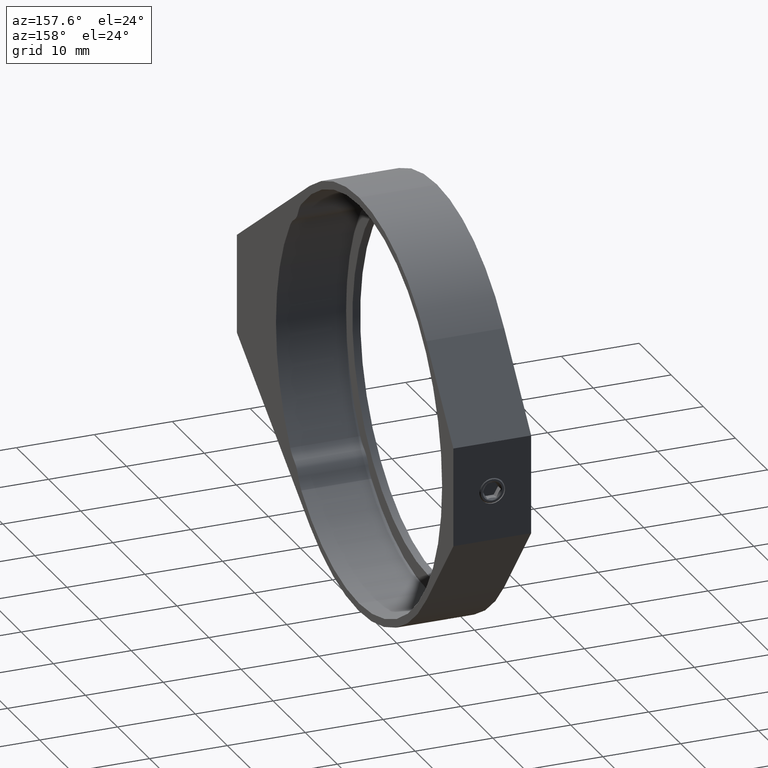
[diagram: clean part render]
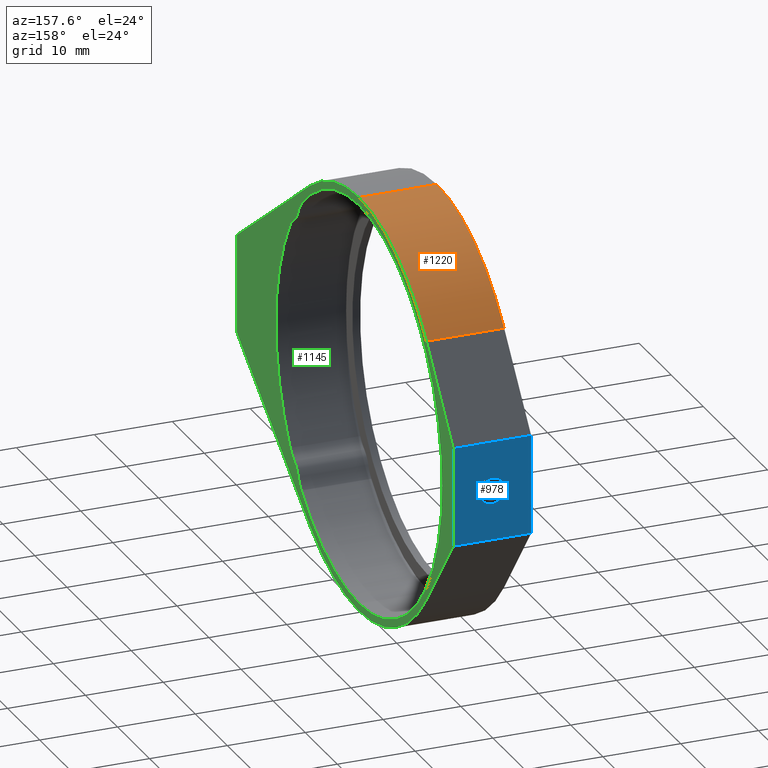
[diagram: same view with three faces highlighted in distinct colors, each labeled with its STEP entity id]
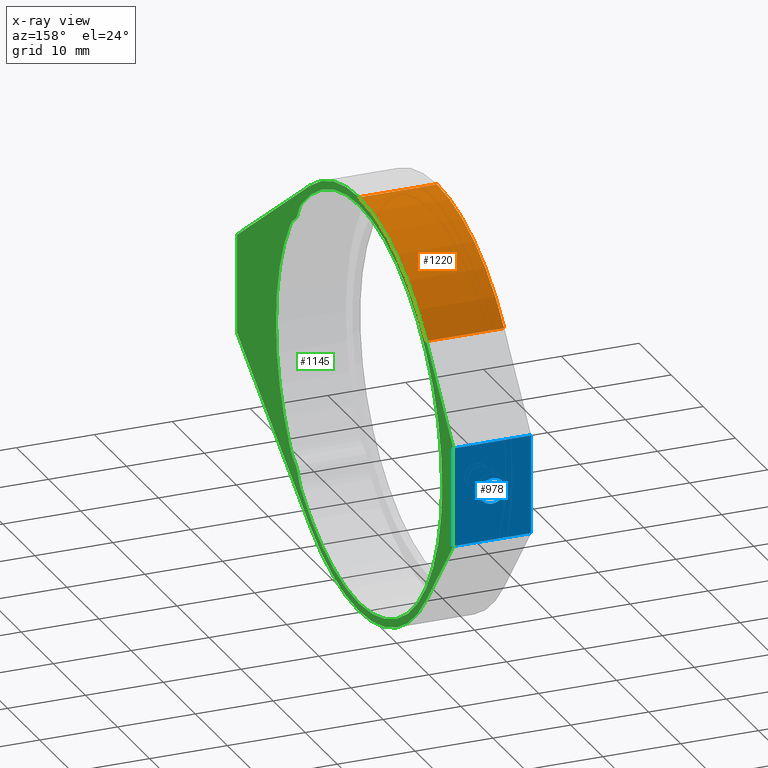
[diagram: x-ray of the same camera — body ghosted, the three highlighted faces saturated]
A machine part, auxiliary view with three faces highlighted in distinct colors.
The next image is the same camera in x-ray (body ghosted, the three faces saturated) — at least one of them is partly hidden behind the body in this view.
Their STEP definitions:

[orange] entity #1220 — the highlighted cylindrical surface (partial cylindrical patch) has radius 26.9 mm, axis along (-1, -0, -0).
#43 = ORIENTED_EDGE ( 'NONE', *, *, #402, .F. ) ;
#48 = VECTOR ( 'NONE', #354, 1000.000000000000000 ) ;
#124 = CARTESIAN_POINT ( 'NONE',  ( -18.30337078651686156, 2.372471910112824212, 67.49999999999998579 ) ) ;
#204 = DIRECTION ( 'NONE',  ( 1.000000000000000000, 0.0000000000000000000, 0.0000000000000000000 ) ) ;
#285 = DIRECTION ( 'NONE',  ( 0.0000000000000000000, 0.0000000000000000000, -1.000000000000000000 ) ) ;
#294 = VERTEX_POINT ( 'NONE', #610 ) ;
#305 = CARTESIAN_POINT ( 'NONE',  ( -8.303370786516859781, 2.372471910112824212, 67.49999999999998579 ) ) ;
#354 = DIRECTION ( 'NONE',  ( -1.000000000000000000, -0.0000000000000000000, -0.0000000000000000000 ) ) ;
#386 = DIRECTION ( 'NONE',  ( -1.000000000000000000, -0.0000000000000000000, -0.0000000000000000000 ) ) ;
#402 = EDGE_CURVE ( 'NONE', #1289, #469, #1460, .T. ) ;
#469 = VERTEX_POINT ( 'NONE', #553 ) ;
#518 = CARTESIAN_POINT ( 'NONE',  ( -8.303370786516859781, 23.34733657643639404, 84.34235886773022628 ) ) ;
#552 = EDGE_CURVE ( 'NONE', #294, #708, #1318, .T. ) ;
#553 = CARTESIAN_POINT ( 'NONE',  ( -8.303370786516859781, 2.372471910112824212, 94.39999999999997726 ) ) ;
#610 = CARTESIAN_POINT ( 'NONE',  ( -18.30337078651686156, 23.34733657643639404, 84.34235886773022628 ) ) ;
#632 = LINE ( 'NONE', #518, #889 ) ;
#648 = EDGE_LOOP ( 'NONE', ( #1506, #43, #1491, #1308 ) ) ;
#661 = DIRECTION ( 'NONE',  ( 0.0000000000000000000, 0.0000000000000000000, 1.000000000000000000 ) ) ;
#667 = AXIS2_PLACEMENT_3D ( 'NONE', #305, #1236, #661 ) ;
#694 = CARTESIAN_POINT ( 'NONE',  ( -8.303370786516859781, 2.372471910112824212, 94.39999999999997726 ) ) ;
#703 = LINE ( 'NONE', #694, #48 ) ;
#708 = VERTEX_POINT ( 'NONE', #1338 ) ;
#766 = CARTESIAN_POINT ( 'NONE',  ( -8.303370786516859781, 2.372471910112824212, 67.49999999999998579 ) ) ;
#806 = DIRECTION ( 'NONE',  ( 0.0000000000000000000, 0.0000000000000000000, -1.000000000000000000 ) ) ;
#889 = VECTOR ( 'NONE', #386, 1000.000000000000000 ) ;
#892 = FACE_OUTER_BOUND ( 'NONE', #648, .T. ) ;
#909 = AXIS2_PLACEMENT_3D ( 'NONE', #766, #1239, #285 ) ;
#999 = CYLINDRICAL_SURFACE ( 'NONE', #667, 26.89999999999999503 ) ;
#1038 = EDGE_CURVE ( 'NONE', #1289, #294, #632, .T. ) ;
#1180 = CARTESIAN_POINT ( 'NONE',  ( -8.303370786516859781, 23.34733657643639404, 84.34235886773022628 ) ) ;
#1220 = ADVANCED_FACE ( 'NONE', ( #892 ), #999, .T. ) ;
#1236 = DIRECTION ( 'NONE',  ( -1.000000000000000000, -0.0000000000000000000, -0.0000000000000000000 ) ) ;
#1239 = DIRECTION ( 'NONE',  ( 1.000000000000000000, 0.0000000000000000000, 0.0000000000000000000 ) ) ;
#1272 = EDGE_CURVE ( 'NONE', #469, #708, #703, .T. ) ;
#1289 = VERTEX_POINT ( 'NONE', #1180 ) ;
#1308 = ORIENTED_EDGE ( 'NONE', *, *, #552, .T. ) ;
#1318 = CIRCLE ( 'NONE', #1362, 26.89999999999999503 ) ;
#1338 = CARTESIAN_POINT ( 'NONE',  ( -18.30337078651686156, 2.372471910112824212, 94.39999999999997726 ) ) ;
#1362 = AXIS2_PLACEMENT_3D ( 'NONE', #124, #204, #806 ) ;
#1460 = CIRCLE ( 'NONE', #909, 26.89999999999999503 ) ;
#1491 = ORIENTED_EDGE ( 'NONE', *, *, #1038, .T. ) ;
#1506 = ORIENTED_EDGE ( 'NONE', *, *, #1272, .F. ) ;

[blue] entity #978 — the highlighted planar face has unit normal (0, -1, 0).
#12 = CARTESIAN_POINT ( 'NONE',  ( -8.303370786516859781, 31.77247191011282368, 73.84999999999999432 ) ) ;
#20 = ORIENTED_EDGE ( 'NONE', *, *, #149, .F. ) ;
#30 = CARTESIAN_POINT ( 'NONE',  ( -18.30337078651686156, 31.77247191011282368, 73.84999999999999432 ) ) ;
#81 = CARTESIAN_POINT ( 'NONE',  ( -13.30337078651685978, 31.77247191011282368, 67.49999999999998579 ) ) ;
#149 = EDGE_CURVE ( 'NONE', #208, #229, #800, .T. ) ;
#157 = DIRECTION ( 'NONE',  ( -1.000000000000000000, -0.0000000000000000000, -0.0000000000000000000 ) ) ;
#160 = CARTESIAN_POINT ( 'NONE',  ( -18.30337078651686156, 31.77247191011282368, 61.14999999999999147 ) ) ;
#208 = VERTEX_POINT ( 'NONE', #12 ) ;
#229 = VERTEX_POINT ( 'NONE', #30 ) ;
#236 = CARTESIAN_POINT ( 'NONE',  ( -8.303370786516859781, 31.77247191011282368, 73.84999999999999432 ) ) ;
#281 = CARTESIAN_POINT ( 'NONE',  ( -8.303370786516859781, 31.77247191011282368, 73.84999999999999432 ) ) ;
#312 = ORIENTED_EDGE ( 'NONE', *, *, #925, .F. ) ;
#320 = VECTOR ( 'NONE', #362, 1000.000000000000000 ) ;
#362 = DIRECTION ( 'NONE',  ( -1.000000000000000000, -0.0000000000000000000, -0.0000000000000000000 ) ) ;
#403 = DIRECTION ( 'NONE',  ( 0.0000000000000000000, -0.0000000000000000000, -1.000000000000000000 ) ) ;
#408 = EDGE_LOOP ( 'NONE', ( #1184, #20, #312, #1493 ) ) ;
#440 = EDGE_CURVE ( 'NONE', #1142, #1441, #786, .T. ) ;
#451 = ORIENTED_EDGE ( 'NONE', *, *, #440, .F. ) ;
#464 = CARTESIAN_POINT ( 'NONE',  ( -8.303370786516859781, 31.77247191011282368, 73.84999999999999432 ) ) ;
#501 = EDGE_LOOP ( 'NONE', ( #451, #1251 ) ) ;
#506 = DIRECTION ( 'NONE',  ( -0.0000000000000000000, 1.000000000000000000, -0.0000000000000000000 ) ) ;
#570 = AXIS2_PLACEMENT_3D ( 'NONE', #281, #735, #403 ) ;
#696 = VERTEX_POINT ( 'NONE', #160 ) ;
#735 = DIRECTION ( 'NONE',  ( 0.0000000000000000000, -1.000000000000000000, 0.0000000000000000000 ) ) ;
#745 = CARTESIAN_POINT ( 'NONE',  ( -13.30337078651685978, 31.77247191011282368, 65.85000000000000853 ) ) ;
#746 = DIRECTION ( 'NONE',  ( 0.0000000000000000000, 0.0000000000000000000, 1.000000000000000000 ) ) ;
#761 = AXIS2_PLACEMENT_3D ( 'NONE', #81, #772, #1252 ) ;
#772 = DIRECTION ( 'NONE',  ( -0.0000000000000000000, 1.000000000000000000, -0.0000000000000000000 ) ) ;
#786 = CIRCLE ( 'NONE', #761, 1.649999999999984812 ) ;
#791 = VERTEX_POINT ( 'NONE', #1244 ) ;
#800 = LINE ( 'NONE', #464, #320 ) ;
#830 = LINE ( 'NONE', #236, #1341 ) ;
#855 = LINE ( 'NONE', #858, #1513 ) ;
#858 = CARTESIAN_POINT ( 'NONE',  ( -8.303370786516859781, 31.77247191011282368, 61.14999999999999147 ) ) ;
#864 = CARTESIAN_POINT ( 'NONE',  ( -13.30337078651685978, 31.77247191011282368, 67.49999999999998579 ) ) ;
#865 = CIRCLE ( 'NONE', #1107, 1.649999999999984812 ) ;
#877 = DIRECTION ( 'NONE',  ( -0.0000000000000000000, -0.0000000000000000000, 1.000000000000000000 ) ) ;
#925 = EDGE_CURVE ( 'NONE', #791, #208, #830, .T. ) ;
#978 = ADVANCED_FACE ( 'NONE', ( #1047, #1099 ), #1212, .F. ) ;
#1008 = EDGE_CURVE ( 'NONE', #1441, #1142, #865, .T. ) ;
#1028 = EDGE_CURVE ( 'NONE', #791, #696, #855, .T. ) ;
#1047 = FACE_BOUND ( 'NONE', #501, .T. ) ;
#1099 = FACE_OUTER_BOUND ( 'NONE', #408, .T. ) ;
#1107 = AXIS2_PLACEMENT_3D ( 'NONE', #864, #506, #746 ) ;
#1142 = VERTEX_POINT ( 'NONE', #1376 ) ;
#1184 = ORIENTED_EDGE ( 'NONE', *, *, #1503, .T. ) ;
#1212 = PLANE ( 'NONE',  #570 ) ;
#1244 = CARTESIAN_POINT ( 'NONE',  ( -8.303370786516859781, 31.77247191011282368, 61.14999999999999147 ) ) ;
#1251 = ORIENTED_EDGE ( 'NONE', *, *, #1008, .F. ) ;
#1252 = DIRECTION ( 'NONE',  ( 0.0000000000000000000, 0.0000000000000000000, 1.000000000000000000 ) ) ;
#1263 = VECTOR ( 'NONE', #877, 1000.000000000000000 ) ;
#1306 = DIRECTION ( 'NONE',  ( -0.0000000000000000000, -0.0000000000000000000, 1.000000000000000000 ) ) ;
#1341 = VECTOR ( 'NONE', #1306, 1000.000000000000000 ) ;
#1374 = LINE ( 'NONE', #1471, #1263 ) ;
#1376 = CARTESIAN_POINT ( 'NONE',  ( -13.30337078651685978, 31.77247191011282368, 69.14999999999997726 ) ) ;
#1441 = VERTEX_POINT ( 'NONE', #745 ) ;
#1471 = CARTESIAN_POINT ( 'NONE',  ( -18.30337078651686156, 31.77247191011282368, 73.84999999999999432 ) ) ;
#1493 = ORIENTED_EDGE ( 'NONE', *, *, #1028, .T. ) ;
#1503 = EDGE_CURVE ( 'NONE', #696, #229, #1374, .T. ) ;
#1513 = VECTOR ( 'NONE', #157, 1000.000000000000000 ) ;

[green] entity #1145 — the highlighted planar face has unit normal (1, 0, 0).
#12 = CARTESIAN_POINT ( 'NONE',  ( -8.303370786516859781, 31.77247191011282368, 73.84999999999999432 ) ) ;
#15 = ORIENTED_EDGE ( 'NONE', *, *, #1522, .F. ) ;
#24 = EDGE_CURVE ( 'NONE', #753, #140, #415, .T. ) ;
#55 = DIRECTION ( 'NONE',  ( -1.000000000000000000, -0.0000000000000000000, -0.0000000000000000000 ) ) ;
#62 = CARTESIAN_POINT ( 'NONE',  ( -8.303370786516856228, -15.77737606549634997, 55.24467387368756732 ) ) ;
#63 = DIRECTION ( 'NONE',  ( 1.000000000000000000, -0.0000000000000000000, 0.0000000000000000000 ) ) ;
#68 = ORIENTED_EDGE ( 'NONE', *, *, #925, .T. ) ;
#85 = VERTEX_POINT ( 'NONE', #998 ) ;
#91 = PLANE ( 'NONE',  #421 ) ;
#104 = CARTESIAN_POINT ( 'NONE',  ( -8.303370786516859781, -15.62841624784376471, 48.87802305004274217 ) ) ;
#106 = ORIENTED_EDGE ( 'NONE', *, *, #1060, .T. ) ;
#110 = EDGE_CURVE ( 'NONE', #841, #1317, #1314, .T. ) ;
#125 = CIRCLE ( 'NONE', #717, 4.000000000000003553 ) ;
#140 = VERTEX_POINT ( 'NONE', #948 ) ;
#159 = ORIENTED_EDGE ( 'NONE', *, *, #24, .T. ) ;
#168 = CARTESIAN_POINT ( 'NONE',  ( -8.303370786516859781, -12.93303491385150572, 45.37871023512459345 ) ) ;
#179 = FACE_BOUND ( 'NONE', #1149, .T. ) ;
#183 = DIRECTION ( 'NONE',  ( 0.0000000000000000000, 0.0000000000000000000, -1.000000000000000000 ) ) ;
#189 = DIRECTION ( 'NONE',  ( 0.0000000000000000000, 0.0000000000000000000, -1.000000000000000000 ) ) ;
#194 = ORIENTED_EDGE ( 'NONE', *, *, #666, .T. ) ;
#207 = CARTESIAN_POINT ( 'NONE',  ( -8.303370786516859781, -19.09241679163501360, 53.00625814285425008 ) ) ;
#208 = VERTEX_POINT ( 'NONE', #12 ) ;
#236 = CARTESIAN_POINT ( 'NONE',  ( -8.303370786516859781, 31.77247191011282368, 73.84999999999999432 ) ) ;
#250 = CIRCLE ( 'NONE', #566, 25.90000000000000568 ) ;
#253 = CARTESIAN_POINT ( 'NONE',  ( -8.303370786516856228, -12.84835630066901579, 83.24599595382483130 ) ) ;
#254 = AXIS2_PLACEMENT_3D ( 'NONE', #929, #336, #1072 ) ;
#269 = EDGE_CURVE ( 'NONE', #208, #1289, #1434, .T. ) ;
#285 = DIRECTION ( 'NONE',  ( 0.0000000000000000000, 0.0000000000000000000, -1.000000000000000000 ) ) ;
#286 = ORIENTED_EDGE ( 'NONE', *, *, #110, .F. ) ;
#290 = LINE ( 'NONE', #1433, #1288 ) ;
#307 = DIRECTION ( 'NONE',  ( 0.0000000000000000000, -1.734723475976808672E-15, -1.000000000000000000 ) ) ;
#311 = DIRECTION ( 'NONE',  ( 1.000000000000000000, 0.0000000000000000000, 0.0000000000000000000 ) ) ;
#328 = CARTESIAN_POINT ( 'NONE',  ( -8.303370786516859781, 2.372471910112824212, 67.49999999999998579 ) ) ;
#329 = CIRCLE ( 'NONE', #1192, 25.90000000000000568 ) ;
#336 = DIRECTION ( 'NONE',  ( -1.000000000000000000, 0.0000000000000000000, -0.0000000000000000000 ) ) ;
#348 = EDGE_CURVE ( 'NONE', #918, #712, #125, .T. ) ;
#366 = ORIENTED_EDGE ( 'NONE', *, *, #939, .T. ) ;
#378 = CARTESIAN_POINT ( 'NONE',  ( -8.303370786516859781, 31.77247191011282368, 73.84999999999999432 ) ) ;
#380 = DIRECTION ( 'NONE',  ( 0.0000000000000000000, 8.673617379884027583E-16, -1.000000000000000000 ) ) ;
#402 = EDGE_CURVE ( 'NONE', #1289, #469, #1460, .T. ) ;
#410 = CARTESIAN_POINT ( 'NONE',  ( -8.303370786516859781, 31.77247191011282368, 61.14999999999999147 ) ) ;
#411 = DIRECTION ( 'NONE',  ( -1.000000000000000000, -0.0000000000000000000, -0.0000000000000000000 ) ) ;
#415 = CIRCLE ( 'NONE', #472, 3.000000000000002665 ) ;
#421 = AXIS2_PLACEMENT_3D ( 'NONE', #1027, #1256, #1268 ) ;
#425 = LINE ( 'NONE', #1511, #741 ) ;
#428 = VERTEX_POINT ( 'NONE', #545 ) ;
#446 = AXIS2_PLACEMENT_3D ( 'NONE', #621, #55, #527 ) ;
#450 = EDGE_CURVE ( 'NONE', #918, #85, #250, .T. ) ;
#452 = ORIENTED_EDGE ( 'NONE', *, *, #805, .T. ) ;
#455 = DIRECTION ( 'NONE',  ( 1.000000000000000000, -0.0000000000000000000, 0.0000000000000000000 ) ) ;
#457 = DIRECTION ( 'NONE',  ( 1.000000000000000000, -0.0000000000000000000, 0.0000000000000000000 ) ) ;
#469 = VERTEX_POINT ( 'NONE', #553 ) ;
#472 = AXIS2_PLACEMENT_3D ( 'NONE', #1520, #457, #922 ) ;
#497 = CIRCLE ( 'NONE', #519, 3.999999999999996447 ) ;
#507 = VERTEX_POINT ( 'NONE', #709 ) ;
#519 = AXIS2_PLACEMENT_3D ( 'NONE', #62, #536, #307 ) ;
#527 = DIRECTION ( 'NONE',  ( 0.0000000000000000000, -3.469446951953611033E-15, -1.000000000000000000 ) ) ;
#536 = DIRECTION ( 'NONE',  ( -1.000000000000000000, -0.0000000000000000000, -0.0000000000000000000 ) ) ;
#538 = DIRECTION ( 'NONE',  ( 0.0000000000000000000, 0.0000000000000000000, -1.000000000000000000 ) ) ;
#539 = DIRECTION ( 'NONE',  ( 1.000000000000000000, 0.0000000000000000000, 0.0000000000000000000 ) ) ;
#545 = CARTESIAN_POINT ( 'NONE',  ( -8.303370786516859781, 23.34733657643639049, 50.65764113226976662 ) ) ;
#546 = DIRECTION ( 'NONE',  ( 1.000000000000000000, -0.0000000000000000000, 0.0000000000000000000 ) ) ;
#553 = CARTESIAN_POINT ( 'NONE',  ( -8.303370786516859781, 2.372471910112824212, 94.39999999999997726 ) ) ;
#554 = DIRECTION ( 'NONE',  ( 0.0000000000000000000, -0.8223527793633977900, -0.5689779488462577417 ) ) ;
#561 = DIRECTION ( 'NONE',  ( 0.0000000000000000000, 0.0000000000000000000, -1.000000000000000000 ) ) ;
#566 = AXIS2_PLACEMENT_3D ( 'NONE', #1136, #63, #538 ) ;
#577 = EDGE_LOOP ( 'NONE', ( #1428, #1226, #874, #1000, #1269, #678, #194, #68, #1281 ) ) ;
#618 = CARTESIAN_POINT ( 'NONE',  ( -8.303370786516859781, -35.72752808988716566, 61.14999999999999147 ) ) ;
#621 = CARTESIAN_POINT ( 'NONE',  ( -8.303370786516856228, -15.77737606549636418, 79.75532612631239715 ) ) ;
#622 = CIRCLE ( 'NONE', #1209, 26.89999999999999503 ) ;
#647 = EDGE_CURVE ( 'NONE', #1367, #1472, #290, .T. ) ;
#654 = CARTESIAN_POINT ( 'NONE',  ( -8.303370786516859781, 2.372471910112824212, 67.49999999999998579 ) ) ;
#666 = EDGE_CURVE ( 'NONE', #428, #791, #1459, .T. ) ;
#678 = ORIENTED_EDGE ( 'NONE', *, *, #1121, .T. ) ;
#684 = LINE ( 'NONE', #1157, #1444 ) ;
#691 = CIRCLE ( 'NONE', #1413, 26.89999999999999503 ) ;
#706 = DIRECTION ( 'NONE',  ( -1.000000000000000000, -0.0000000000000000000, -0.0000000000000000000 ) ) ;
#709 = CARTESIAN_POINT ( 'NONE',  ( -8.303370786516859781, -12.93303491385151105, 89.62128976487537102 ) ) ;
#712 = VERTEX_POINT ( 'NONE', #754 ) ;
#717 = AXIS2_PLACEMENT_3D ( 'NONE', #1111, #411, #869 ) ;
#723 = CIRCLE ( 'NONE', #254, 3.000000000000002665 ) ;
#741 = VECTOR ( 'NONE', #554, 1000.000000000000114 ) ;
#753 = VERTEX_POINT ( 'NONE', #1061 ) ;
#754 = CARTESIAN_POINT ( 'NONE',  ( -8.303370786516859781, -16.58254714283878428, 50.32019138259061464 ) ) ;
#762 = ORIENTED_EDGE ( 'NONE', *, *, #450, .F. ) ;
#764 = AXIS2_PLACEMENT_3D ( 'NONE', #253, #706, #380 ) ;
#766 = CARTESIAN_POINT ( 'NONE',  ( -8.303370786516859781, 2.372471910112824212, 67.49999999999998579 ) ) ;
#776 = CARTESIAN_POINT ( 'NONE',  ( -8.303370786516859781, 2.372471910112824212, 67.49999999999998579 ) ) ;
#791 = VERTEX_POINT ( 'NONE', #1244 ) ;
#805 = EDGE_CURVE ( 'NONE', #1223, #1150, #497, .T. ) ;
#808 = CARTESIAN_POINT ( 'NONE',  ( -8.303370786516859781, 2.372471910112824212, 67.49999999999998579 ) ) ;
#830 = LINE ( 'NONE', #236, #1341 ) ;
#839 = VERTEX_POINT ( 'NONE', #1430 ) ;
#841 = VERTEX_POINT ( 'NONE', #931 ) ;
#854 = CARTESIAN_POINT ( 'NONE',  ( -8.303370786516859781, -19.09241679163502781, 81.99374185714570729 ) ) ;
#868 = AXIS2_PLACEMENT_3D ( 'NONE', #654, #883, #189 ) ;
#869 = DIRECTION ( 'NONE',  ( 0.0000000000000000000, 1.734723475976805517E-15, -1.000000000000000000 ) ) ;
#874 = ORIENTED_EDGE ( 'NONE', *, *, #1213, .T. ) ;
#883 = DIRECTION ( 'NONE',  ( 1.000000000000000000, -0.0000000000000000000, 0.0000000000000000000 ) ) ;
#884 = AXIS2_PLACEMENT_3D ( 'NONE', #808, #455, #1518 ) ;
#895 = ORIENTED_EDGE ( 'NONE', *, *, #1531, .F. ) ;
#907 = CARTESIAN_POINT ( 'NONE',  ( -8.303370786516859781, -17.83784132776479225, 51.81619273723879360 ) ) ;
#909 = AXIS2_PLACEMENT_3D ( 'NONE', #766, #1239, #285 ) ;
#918 = VERTEX_POINT ( 'NONE', #104 ) ;
#921 = CARTESIAN_POINT ( 'NONE',  ( -8.303370786516859781, -15.62841624784377892, 86.12197694995721520 ) ) ;
#922 = DIRECTION ( 'NONE',  ( 0.0000000000000000000, 0.0000000000000000000, -1.000000000000000000 ) ) ;
#925 = EDGE_CURVE ( 'NONE', #791, #208, #830, .T. ) ;
#929 = CARTESIAN_POINT ( 'NONE',  ( -8.303370786516859781, -19.38319027446611997, 49.24483188490222574 ) ) ;
#931 = CARTESIAN_POINT ( 'NONE',  ( -8.303370786516859781, 2.372471910112827320, 93.40000000000000568 ) ) ;
#939 = EDGE_CURVE ( 'NONE', #140, #1317, #1463, .T. ) ;
#947 = DIRECTION ( 'NONE',  ( -0.0000000000000000000, 0.6261099950829078775, 0.7797347459599842656 ) ) ;
#948 = CARTESIAN_POINT ( 'NONE',  ( -8.303370786516859781, -16.58254714283879139, 84.67980861740934984 ) ) ;
#968 = EDGE_CURVE ( 'NONE', #839, #1367, #684, .T. ) ;
#998 = CARTESIAN_POINT ( 'NONE',  ( -8.303370786516859781, 2.372471910112824212, 41.59999999999998010 ) ) ;
#1000 = ORIENTED_EDGE ( 'NONE', *, *, #968, .T. ) ;
#1002 = DIRECTION ( 'NONE',  ( 0.0000000000000000000, 0.0000000000000000000, -1.000000000000000000 ) ) ;
#1027 = CARTESIAN_POINT ( 'NONE',  ( -8.303370786516859781, 2.372471910112824212, 67.49999999999998579 ) ) ;
#1031 = CIRCLE ( 'NONE', #446, 4.000000000000003553 ) ;
#1041 = ORIENTED_EDGE ( 'NONE', *, *, #348, .T. ) ;
#1060 = EDGE_CURVE ( 'NONE', #1414, #753, #1031, .T. ) ;
#1061 = CARTESIAN_POINT ( 'NONE',  ( -8.303370786516859781, -17.83784132776480291, 83.18380726276117798 ) ) ;
#1072 = DIRECTION ( 'NONE',  ( 0.0000000000000000000, -1.156482317317870344E-15, -1.000000000000000000 ) ) ;
#1111 = CARTESIAN_POINT ( 'NONE',  ( -8.303370786516856228, -12.84835630066899981, 51.75400404617514027 ) ) ;
#1121 = EDGE_CURVE ( 'NONE', #1472, #428, #691, .T. ) ;
#1136 = CARTESIAN_POINT ( 'NONE',  ( -8.303370786516859781, 2.372471910112824212, 67.49999999999998579 ) ) ;
#1145 = ADVANCED_FACE ( 'NONE', ( #1365, #179 ), #91, .T. ) ;
#1149 = EDGE_LOOP ( 'NONE', ( #895, #106, #159, #366, #286, #15, #762, #1041, #1320, #452 ) ) ;
#1150 = VERTEX_POINT ( 'NONE', #207 ) ;
#1157 = CARTESIAN_POINT ( 'NONE',  ( -8.303370786516859781, -35.72752808988716566, 73.84999999999998010 ) ) ;
#1180 = CARTESIAN_POINT ( 'NONE',  ( -8.303370786516859781, 23.34733657643639404, 84.34235886773022628 ) ) ;
#1185 = EDGE_CURVE ( 'NONE', #469, #507, #622, .T. ) ;
#1192 = AXIS2_PLACEMENT_3D ( 'NONE', #1240, #546, #183 ) ;
#1209 = AXIS2_PLACEMENT_3D ( 'NONE', #776, #539, #1002 ) ;
#1213 = EDGE_CURVE ( 'NONE', #507, #839, #425, .T. ) ;
#1223 = VERTEX_POINT ( 'NONE', #907 ) ;
#1226 = ORIENTED_EDGE ( 'NONE', *, *, #1185, .T. ) ;
#1239 = DIRECTION ( 'NONE',  ( 1.000000000000000000, 0.0000000000000000000, 0.0000000000000000000 ) ) ;
#1240 = CARTESIAN_POINT ( 'NONE',  ( -8.303370786516859781, 2.372471910112824212, 67.49999999999998579 ) ) ;
#1244 = CARTESIAN_POINT ( 'NONE',  ( -8.303370786516859781, 31.77247191011282368, 61.14999999999999147 ) ) ;
#1256 = DIRECTION ( 'NONE',  ( 1.000000000000000000, 0.0000000000000000000, 0.0000000000000000000 ) ) ;
#1268 = DIRECTION ( 'NONE',  ( 0.0000000000000000000, 0.0000000000000000000, -1.000000000000000000 ) ) ;
#1269 = ORIENTED_EDGE ( 'NONE', *, *, #647, .T. ) ;
#1281 = ORIENTED_EDGE ( 'NONE', *, *, #269, .T. ) ;
#1287 = DIRECTION ( 'NONE',  ( 0.0000000000000000000, 0.0000000000000000000, -1.000000000000000000 ) ) ;
#1288 = VECTOR ( 'NONE', #1476, 1000.000000000000000 ) ;
#1289 = VERTEX_POINT ( 'NONE', #1180 ) ;
#1306 = DIRECTION ( 'NONE',  ( -0.0000000000000000000, -0.0000000000000000000, 1.000000000000000000 ) ) ;
#1314 = CIRCLE ( 'NONE', #884, 25.90000000000000568 ) ;
#1317 = VERTEX_POINT ( 'NONE', #921 ) ;
#1320 = ORIENTED_EDGE ( 'NONE', *, *, #1329, .F. ) ;
#1323 = DIRECTION ( 'NONE',  ( 0.0000000000000000000, -0.6261099950829080996, 0.7797347459599840436 ) ) ;
#1329 = EDGE_CURVE ( 'NONE', #1223, #712, #723, .T. ) ;
#1341 = VECTOR ( 'NONE', #1306, 1000.000000000000000 ) ;
#1365 = FACE_OUTER_BOUND ( 'NONE', #577, .T. ) ;
#1367 = VERTEX_POINT ( 'NONE', #618 ) ;
#1413 = AXIS2_PLACEMENT_3D ( 'NONE', #328, #311, #561 ) ;
#1414 = VERTEX_POINT ( 'NONE', #854 ) ;
#1428 = ORIENTED_EDGE ( 'NONE', *, *, #402, .T. ) ;
#1430 = CARTESIAN_POINT ( 'NONE',  ( -8.303370786516859781, -35.72752808988716566, 73.84999999999998010 ) ) ;
#1433 = CARTESIAN_POINT ( 'NONE',  ( -8.303370786516859781, -12.93303491385150572, 45.37871023512459345 ) ) ;
#1434 = LINE ( 'NONE', #378, #1509 ) ;
#1444 = VECTOR ( 'NONE', #1287, 1000.000000000000000 ) ;
#1459 = LINE ( 'NONE', #410, #1486 ) ;
#1460 = CIRCLE ( 'NONE', #909, 26.89999999999999503 ) ;
#1463 = CIRCLE ( 'NONE', #764, 4.000000000000003553 ) ;
#1472 = VERTEX_POINT ( 'NONE', #168 ) ;
#1476 = DIRECTION ( 'NONE',  ( -0.0000000000000000000, 0.8223527793633980121, -0.5689779488462576307 ) ) ;
#1486 = VECTOR ( 'NONE', #947, 999.9999999999998863 ) ;
#1490 = CIRCLE ( 'NONE', #868, 25.90000000000000568 ) ;
#1509 = VECTOR ( 'NONE', #1323, 1000.000000000000114 ) ;
#1511 = CARTESIAN_POINT ( 'NONE',  ( -8.303370786516859781, -12.93303491385151105, 89.62128976487537102 ) ) ;
#1518 = DIRECTION ( 'NONE',  ( 0.0000000000000000000, 0.0000000000000000000, -1.000000000000000000 ) ) ;
#1520 = CARTESIAN_POINT ( 'NONE',  ( -8.303370786516859781, -19.38319027446612353, 85.75516811509776005 ) ) ;
#1522 = EDGE_CURVE ( 'NONE', #85, #841, #329, .T. ) ;
#1531 = EDGE_CURVE ( 'NONE', #1414, #1150, #1490, .T. ) ;